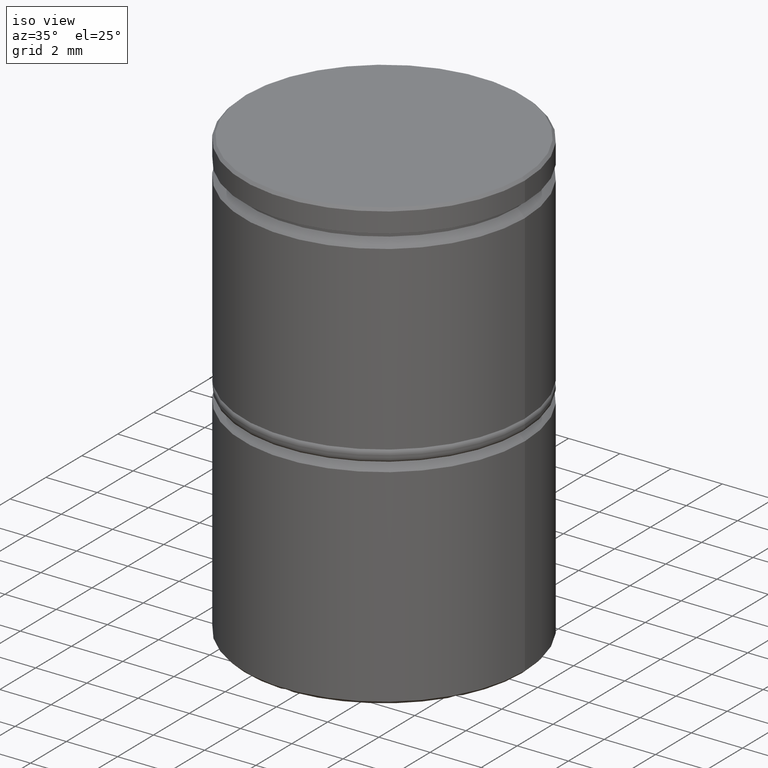
[diagram: clean part render]
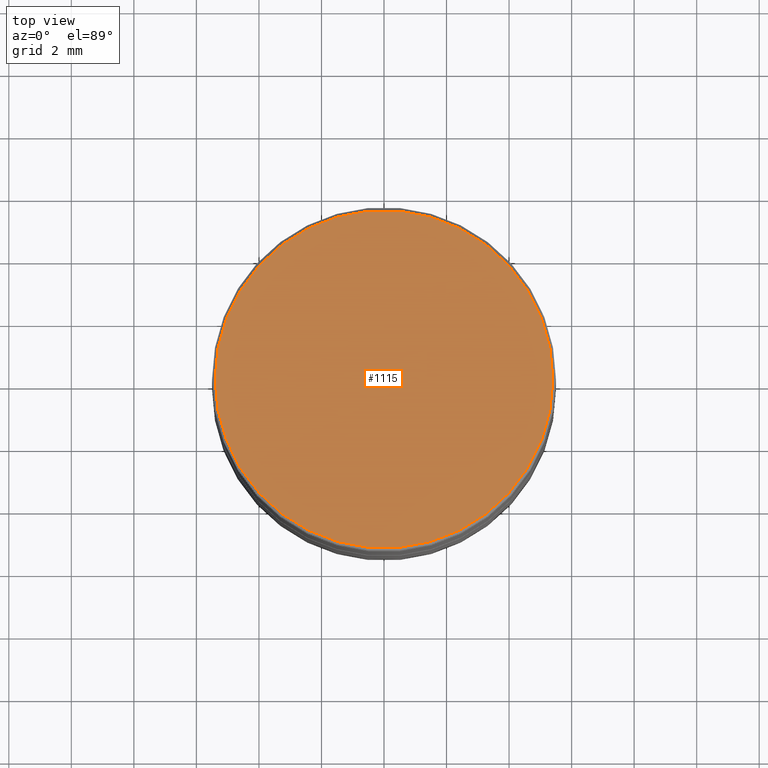
[diagram: tour spotlight — one face highlighted and labeled with its STEP entity id]
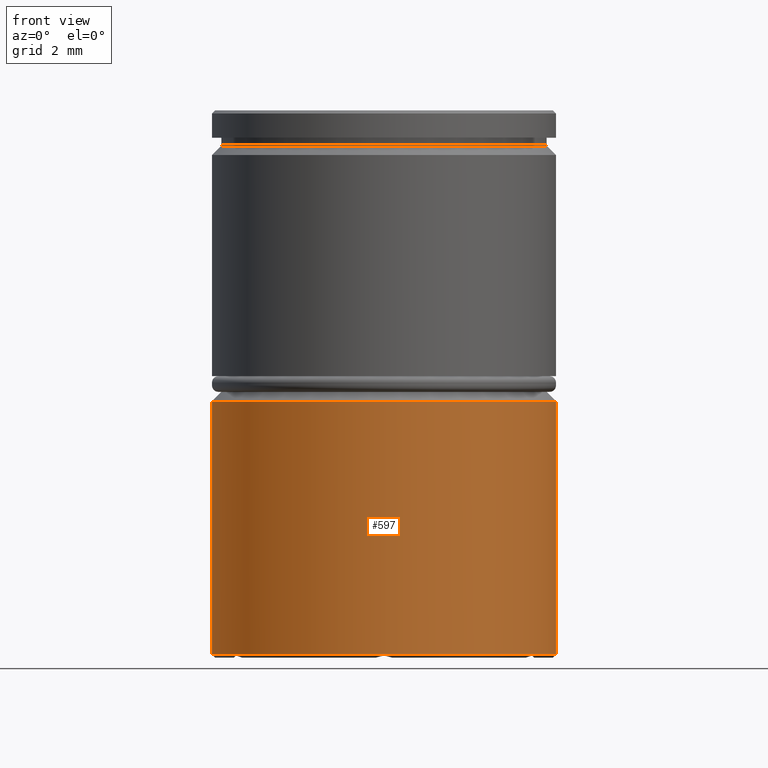
[diagram: tour spotlight — one face highlighted and labeled with its STEP entity id]
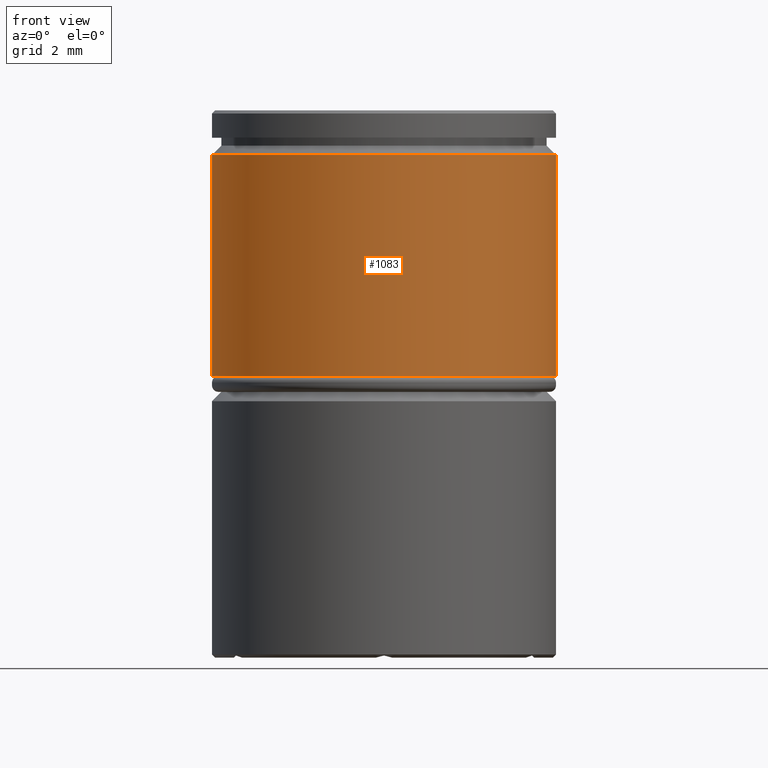
[diagram: tour spotlight — one face highlighted and labeled with its STEP entity id]
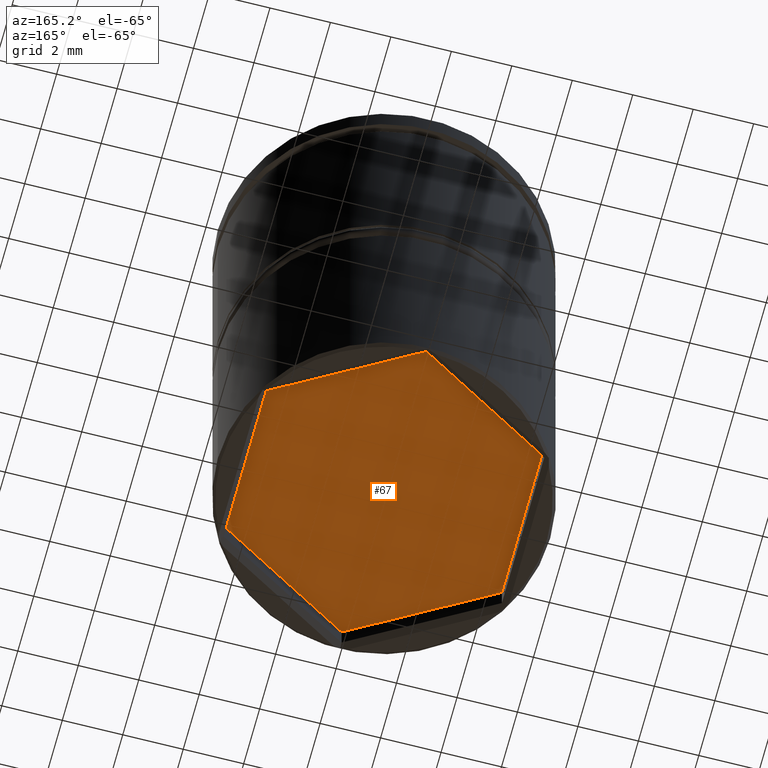
[diagram: tour spotlight — one face highlighted and labeled with its STEP entity id]
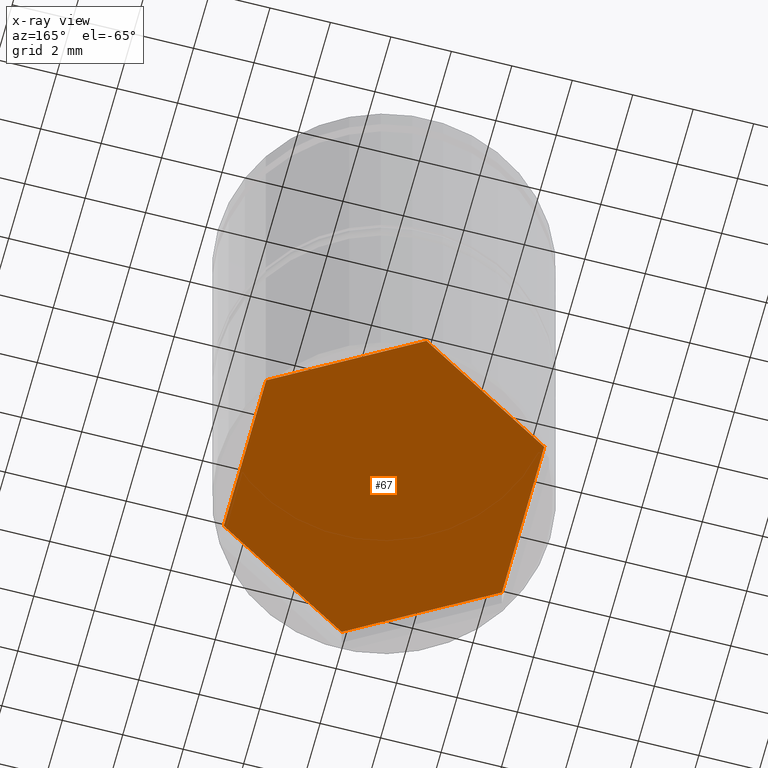
[diagram: x-ray of the same camera — body ghosted, this tour face saturated]
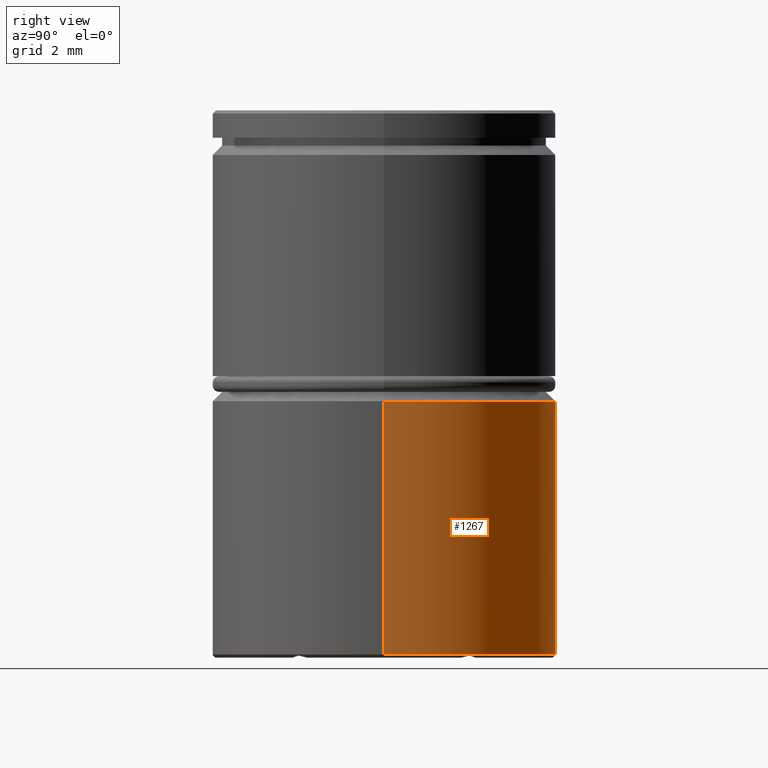
[diagram: tour spotlight — one face highlighted and labeled with its STEP entity id]
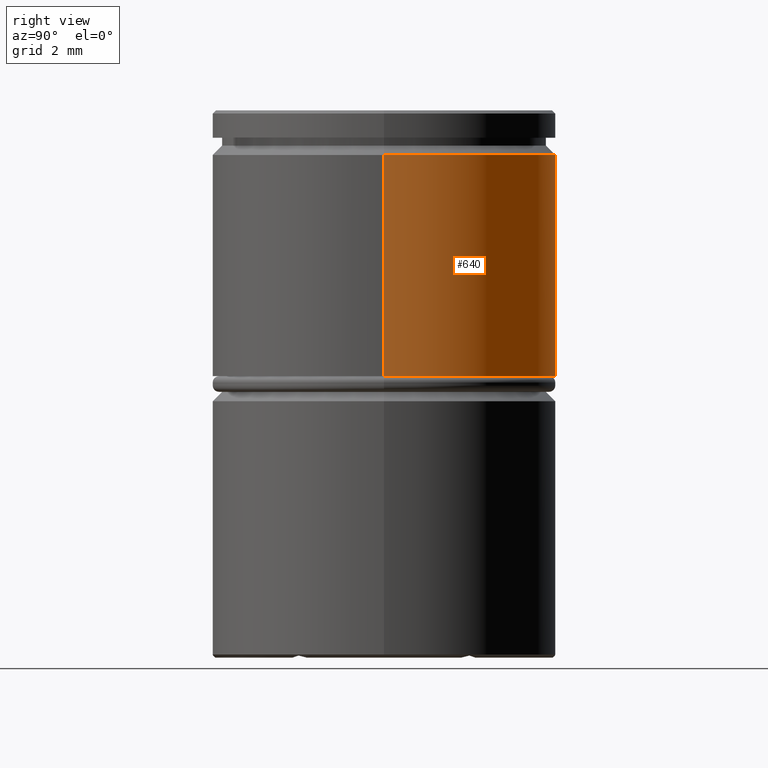
[diagram: tour spotlight — one face highlighted and labeled with its STEP entity id]
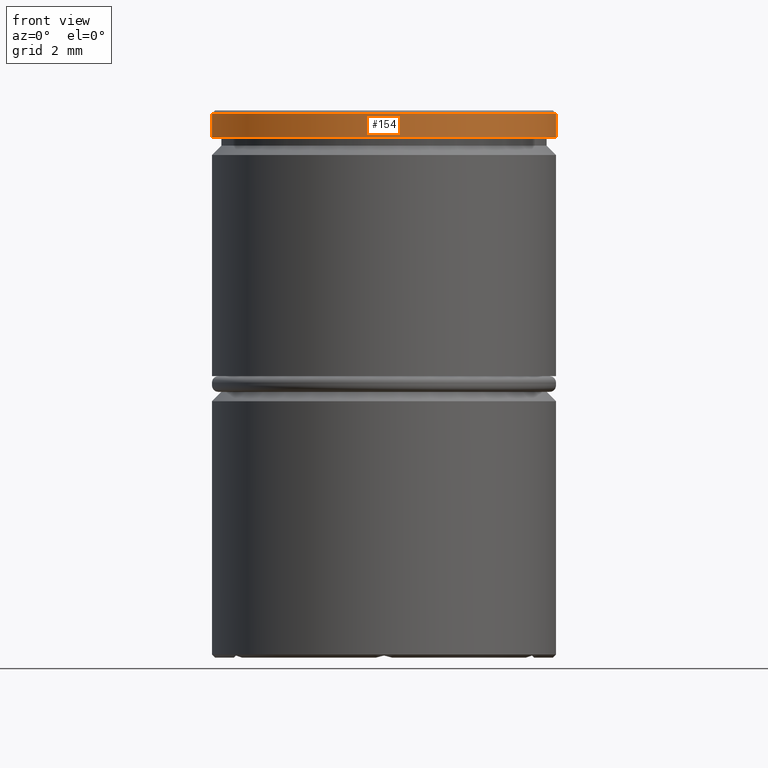
[diagram: tour spotlight — one face highlighted and labeled with its STEP entity id]
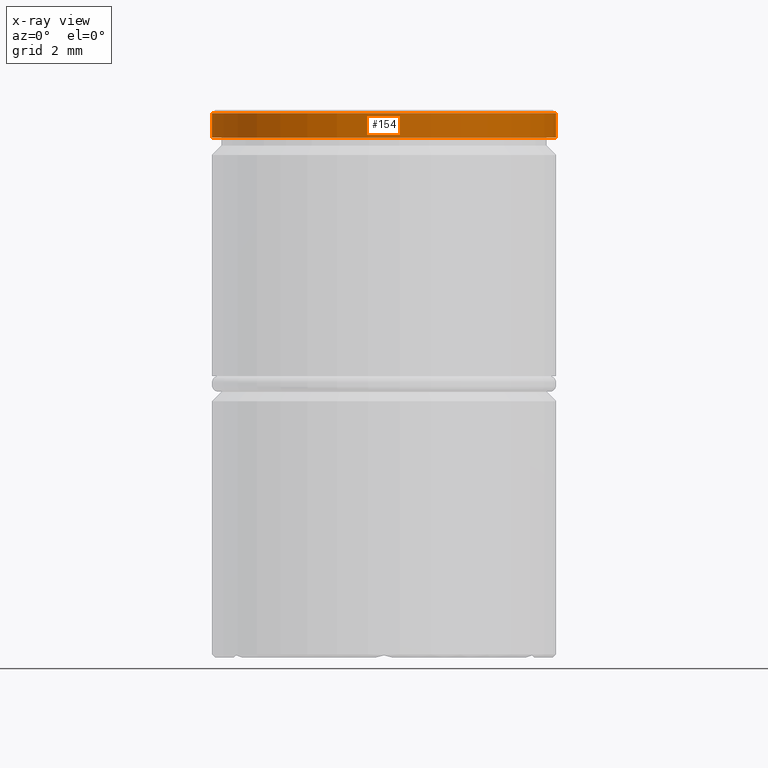
[diagram: x-ray of the same camera — body ghosted, this tour face saturated]
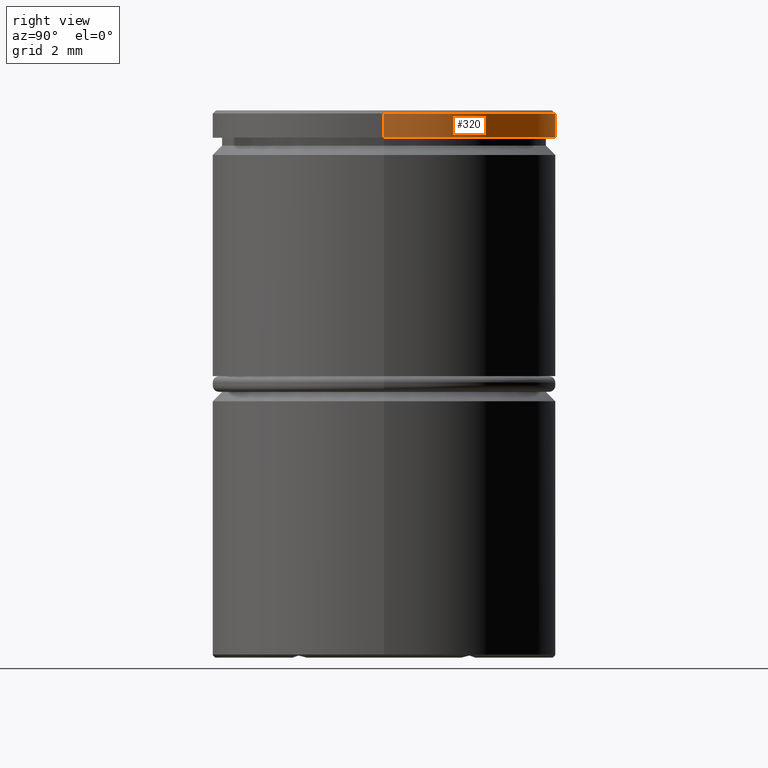
[diagram: tour spotlight — one face highlighted and labeled with its STEP entity id]
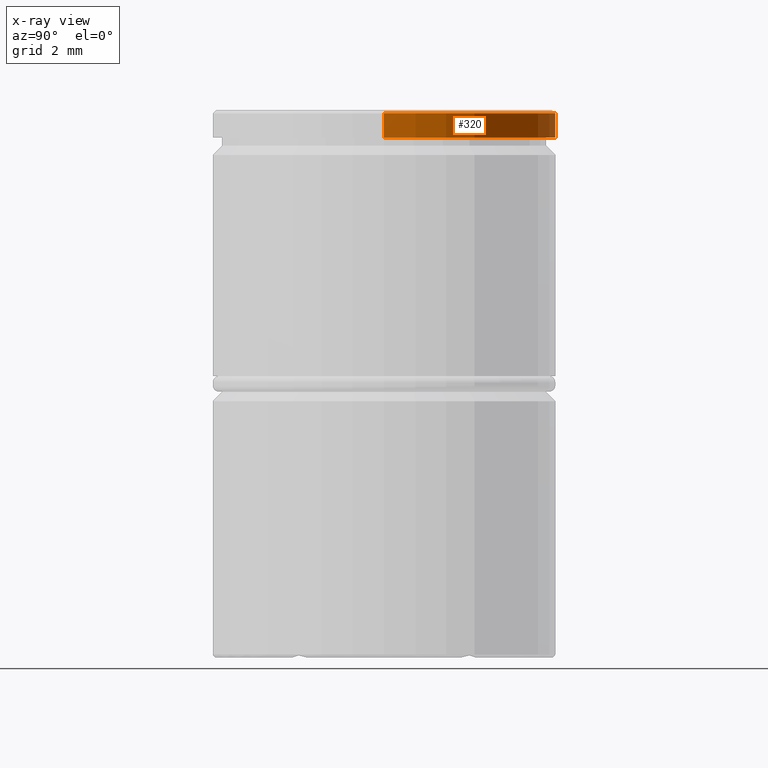
[diagram: x-ray of the same camera — body ghosted, this tour face saturated]
A machine part: a face-by-face anatomy tour. The part has 48 B-rep faces; the first image is the clean iso view, then the 8 largest visible faces are spotlighted one at a time (largest first), each with its STEP entity span.

Face 1 — top view, entity #1115. In plain terms, the highlighted planar face has unit normal (0, -0, 1).
Definition (entity closure, byte-faithful):
#26 = AXIS2_PLACEMENT_3D ( 'NONE', #747, #423, #643 ) ;
#95 = AXIS2_PLACEMENT_3D ( 'NONE', #1132, #595, #1238 ) ;
#110 = EDGE_CURVE ( 'NONE', #297, #657, #263, .T. ) ;
#263 = CIRCLE ( 'NONE', #1220, 5.400000000000005684 ) ;
#297 = VERTEX_POINT ( 'NONE', #761 ) ;
#322 = CARTESIAN_POINT ( 'NONE',  ( -5.400000000000005684, 0.000000000000000000, 0.000000000000000000 ) ) ;
#423 = DIRECTION ( 'NONE',  ( -0.000000000000000000, -0.000000000000000000, 1.000000000000000000 ) ) ;
#455 = CIRCLE ( 'NONE', #26, 5.400000000000005684 ) ;
#575 = ORIENTED_EDGE ( 'NONE', *, *, #110, .T. ) ;
#595 = DIRECTION ( 'NONE',  ( 0.000000000000000000, -0.000000000000000000, 1.000000000000000000 ) ) ;
#643 = DIRECTION ( 'NONE',  ( 1.000000000000000000, 0.000000000000000000, 0.000000000000000000 ) ) ;
#657 = VERTEX_POINT ( 'NONE', #322 ) ;
#721 = PLANE ( 'NONE',  #95 ) ;
#747 = CARTESIAN_POINT ( 'NONE',  ( 0.000000000000000000, 0.000000000000000000, 0.000000000000000000 ) ) ;
#761 = CARTESIAN_POINT ( 'NONE',  ( 5.400000000000005684, 6.674325055353078196E-16, 0.000000000000000000 ) ) ;
#820 = CARTESIAN_POINT ( 'NONE',  ( 0.000000000000000000, 0.000000000000000000, 0.000000000000000000 ) ) ;
#845 = FACE_OUTER_BOUND ( 'NONE', #1097, .T. ) ;
#919 = DIRECTION ( 'NONE',  ( -0.000000000000000000, -0.000000000000000000, 1.000000000000000000 ) ) ;
#920 = ORIENTED_EDGE ( 'NONE', *, *, #1329, .T. ) ;
#1097 = EDGE_LOOP ( 'NONE', ( #920, #575 ) ) ;
#1115 = ADVANCED_FACE ( 'NONE', ( #845 ), #721, .T. ) ;
#1132 = CARTESIAN_POINT ( 'NONE',  ( 0.000000000000000000, 0.000000000000000000, 0.000000000000000000 ) ) ;
#1220 = AXIS2_PLACEMENT_3D ( 'NONE', #820, #919, #1352 ) ;
#1238 = DIRECTION ( 'NONE',  ( 1.000000000000000000, 0.000000000000000000, 0.000000000000000000 ) ) ;
#1329 = EDGE_CURVE ( 'NONE', #657, #297, #455, .T. ) ;
#1352 = DIRECTION ( 'NONE',  ( 1.000000000000000000, 0.000000000000000000, 0.000000000000000000 ) ) ;

Face 2 — front view, entity #597. In plain terms, the highlighted cylindrical surface (partial cylindrical patch) has radius 5.5 mm, axis along (-0, -0, 1).
Definition (entity closure, byte-faithful):
#1 = ORIENTED_EDGE ( 'NONE', *, *, #850, .T. ) ;
#19 = VERTEX_POINT ( 'NONE', #505 ) ;
#66 = AXIS2_PLACEMENT_3D ( 'NONE', #393, #77, #70 ) ;
#70 = DIRECTION ( 'NONE',  ( 1.000000000000000000, 0.000000000000000000, 0.000000000000000000 ) ) ;
#77 = DIRECTION ( 'NONE',  ( -0.000000000000000000, -0.000000000000000000, 1.000000000000000000 ) ) ;
#84 = CYLINDRICAL_SURFACE ( 'NONE', #66, 5.500000000000000000 ) ;
#118 = VECTOR ( 'NONE', #503, 1000.000000000000000 ) ;
#145 = CARTESIAN_POINT ( 'NONE',  ( 0.000000000000000000, 0.000000000000000000, -17.40000000000000568 ) ) ;
#187 = ORIENTED_EDGE ( 'NONE', *, *, #775, .F. ) ;
#189 = CARTESIAN_POINT ( 'NONE',  ( 5.500000000000000000, 0.000000000000000000, 0.000000000000000000 ) ) ;
#243 = DIRECTION ( 'NONE',  ( 0.000000000000000000, 0.000000000000000000, -1.000000000000000000 ) ) ;
#334 = LINE ( 'NONE', #1302, #650 ) ;
#375 = EDGE_CURVE ( 'NONE', #923, #1283, #935, .T. ) ;
#393 = CARTESIAN_POINT ( 'NONE',  ( 0.000000000000000000, 0.000000000000000000, 0.000000000000000000 ) ) ;
#503 = DIRECTION ( 'NONE',  ( -0.000000000000000000, -0.000000000000000000, 1.000000000000000000 ) ) ;
#505 = CARTESIAN_POINT ( 'NONE',  ( -5.500000000000000000, 6.735557395310442023E-16, -9.299999999999998934 ) ) ;
#543 = DIRECTION ( 'NONE',  ( -0.000000000000000000, -0.000000000000000000, 1.000000000000000000 ) ) ;
#594 = LINE ( 'NONE', #189, #118 ) ;
#597 = ADVANCED_FACE ( 'NONE', ( #601 ), #84, .T. ) ;
#601 = FACE_OUTER_BOUND ( 'NONE', #1193, .T. ) ;
#629 = VERTEX_POINT ( 'NONE', #1234 ) ;
#650 = VECTOR ( 'NONE', #543, 1000.000000000000000 ) ;
#685 = ORIENTED_EDGE ( 'NONE', *, *, #375, .T. ) ;
#775 = EDGE_CURVE ( 'NONE', #923, #19, #334, .T. ) ;
#776 = DIRECTION ( 'NONE',  ( -0.000000000000000000, -0.000000000000000000, 1.000000000000000000 ) ) ;
#777 = CARTESIAN_POINT ( 'NONE',  ( 0.000000000000000000, 0.000000000000000000, -9.299999999999998934 ) ) ;
#782 = DIRECTION ( 'NONE',  ( -1.000000000000000000, 0.000000000000000000, 0.000000000000000000 ) ) ;
#850 = EDGE_CURVE ( 'NONE', #629, #19, #959, .T. ) ;
#923 = VERTEX_POINT ( 'NONE', #1322 ) ;
#935 = CIRCLE ( 'NONE', #1181, 5.500000000000000000 ) ;
#959 = CIRCLE ( 'NONE', #983, 5.500000000000000000 ) ;
#976 = ORIENTED_EDGE ( 'NONE', *, *, #1210, .T. ) ;
#983 = AXIS2_PLACEMENT_3D ( 'NONE', #777, #243, #988 ) ;
#988 = DIRECTION ( 'NONE',  ( 1.000000000000000000, 0.000000000000000000, 0.000000000000000000 ) ) ;
#1181 = AXIS2_PLACEMENT_3D ( 'NONE', #145, #776, #782 ) ;
#1193 = EDGE_LOOP ( 'NONE', ( #187, #685, #976, #1 ) ) ;
#1210 = EDGE_CURVE ( 'NONE', #1283, #629, #594, .T. ) ;
#1234 = CARTESIAN_POINT ( 'NONE',  ( 5.500000000000000000, 0.000000000000000000, -9.299999999999998934 ) ) ;
#1253 = CARTESIAN_POINT ( 'NONE',  ( 5.500000000000000000, 0.000000000000000000, -17.40000000000000568 ) ) ;
#1283 = VERTEX_POINT ( 'NONE', #1253 ) ;
#1302 = CARTESIAN_POINT ( 'NONE',  ( -5.500000000000000000, 6.735557395310442023E-16, 0.000000000000000000 ) ) ;
#1322 = CARTESIAN_POINT ( 'NONE',  ( -5.500000000000000000, 6.735557395310442023E-16, -17.40000000000000568 ) ) ;

Face 3 — front view, entity #1083. In plain terms, the highlighted cylindrical surface (partial cylindrical patch) has radius 5.5 mm, axis along (-0, -0, 1).
Definition (entity closure, byte-faithful):
#18 = CARTESIAN_POINT ( 'NONE',  ( -5.500000000000000000, 6.735557395310442023E-16, 0.000000000000000000 ) ) ;
#39 = VERTEX_POINT ( 'NONE', #57 ) ;
#57 = CARTESIAN_POINT ( 'NONE',  ( -5.500000000000000000, 6.735557395310442023E-16, -1.425000000000005151 ) ) ;
#71 = DIRECTION ( 'NONE',  ( 1.000000000000000000, 0.000000000000000000, 0.000000000000000000 ) ) ;
#98 = DIRECTION ( 'NONE',  ( -0.000000000000000000, -0.000000000000000000, 1.000000000000000000 ) ) ;
#137 = EDGE_CURVE ( 'NONE', #805, #719, #227, .T. ) ;
#168 = EDGE_LOOP ( 'NONE', ( #421, #565, #378, #480 ) ) ;
#227 = CIRCLE ( 'NONE', #540, 5.500000000000000000 ) ;
#230 = AXIS2_PLACEMENT_3D ( 'NONE', #862, #1195, #237 ) ;
#237 = DIRECTION ( 'NONE',  ( 1.000000000000000000, 0.000000000000000000, 0.000000000000000000 ) ) ;
#285 = CARTESIAN_POINT ( 'NONE',  ( 5.500000000000000000, 0.000000000000000000, -1.425000000000005151 ) ) ;
#378 = ORIENTED_EDGE ( 'NONE', *, *, #1357, .T. ) ;
#421 = ORIENTED_EDGE ( 'NONE', *, *, #704, .F. ) ;
#433 = AXIS2_PLACEMENT_3D ( 'NONE', #1024, #828, #71 ) ;
#444 = VERTEX_POINT ( 'NONE', #285 ) ;
#449 = CARTESIAN_POINT ( 'NONE',  ( 5.500000000000000000, 0.000000000000000000, -8.500000000000000000 ) ) ;
#480 = ORIENTED_EDGE ( 'NONE', *, *, #1194, .T. ) ;
#538 = CYLINDRICAL_SURFACE ( 'NONE', #230, 5.500000000000000000 ) ;
#540 = AXIS2_PLACEMENT_3D ( 'NONE', #931, #834, #1335 ) ;
#565 = ORIENTED_EDGE ( 'NONE', *, *, #137, .T. ) ;
#675 = VECTOR ( 'NONE', #98, 1000.000000000000000 ) ;
#704 = EDGE_CURVE ( 'NONE', #805, #39, #1169, .T. ) ;
#719 = VERTEX_POINT ( 'NONE', #449 ) ;
#768 = FACE_OUTER_BOUND ( 'NONE', #168, .T. ) ;
#787 = VECTOR ( 'NONE', #1176, 1000.000000000000000 ) ;
#805 = VERTEX_POINT ( 'NONE', #961 ) ;
#828 = DIRECTION ( 'NONE',  ( 0.000000000000000000, 0.000000000000000000, -1.000000000000000000 ) ) ;
#834 = DIRECTION ( 'NONE',  ( -0.000000000000000000, -0.000000000000000000, 1.000000000000000000 ) ) ;
#862 = CARTESIAN_POINT ( 'NONE',  ( 0.000000000000000000, 0.000000000000000000, 0.000000000000000000 ) ) ;
#931 = CARTESIAN_POINT ( 'NONE',  ( 0.000000000000000000, 0.000000000000000000, -8.500000000000000000 ) ) ;
#961 = CARTESIAN_POINT ( 'NONE',  ( -5.500000000000000000, 6.735557395310442023E-16, -8.500000000000000000 ) ) ;
#1003 = CIRCLE ( 'NONE', #433, 5.500000000000000000 ) ;
#1024 = CARTESIAN_POINT ( 'NONE',  ( 0.000000000000000000, 0.000000000000000000, -1.425000000000005151 ) ) ;
#1080 = CARTESIAN_POINT ( 'NONE',  ( 5.500000000000000000, 0.000000000000000000, 0.000000000000000000 ) ) ;
#1083 = ADVANCED_FACE ( 'NONE', ( #768 ), #538, .T. ) ;
#1169 = LINE ( 'NONE', #18, #787 ) ;
#1176 = DIRECTION ( 'NONE',  ( -0.000000000000000000, -0.000000000000000000, 1.000000000000000000 ) ) ;
#1194 = EDGE_CURVE ( 'NONE', #444, #39, #1003, .T. ) ;
#1195 = DIRECTION ( 'NONE',  ( -0.000000000000000000, -0.000000000000000000, 1.000000000000000000 ) ) ;
#1335 = DIRECTION ( 'NONE',  ( 1.000000000000000000, 0.000000000000000000, 0.000000000000000000 ) ) ;
#1357 = EDGE_CURVE ( 'NONE', #719, #444, #1376, .T. ) ;
#1376 = LINE ( 'NONE', #1080, #675 ) ;

Face 4 — auxiliary view, entity #67. An x-ray twin of the same camera follows (body ghosted, this face saturated) — the face is partly hidden behind the body. In plain terms, the highlighted planar face has unit normal (0, 0, -1).
Definition (entity closure, byte-faithful):
#8 = CARTESIAN_POINT ( 'NONE',  ( 0.000000000000000000, 5.311622476544559213, -16.50000000000000000 ) ) ;
#21 = AXIS2_PLACEMENT_3D ( 'NONE', #908, #903, #1241 ) ;
#50 = VERTEX_POINT ( 'NONE', #287 ) ;
#67 = ADVANCED_FACE ( 'NONE', ( #75 ), #715, .T. ) ;
#75 = FACE_OUTER_BOUND ( 'NONE', #1066, .T. ) ;
#90 = DIRECTION ( 'NONE',  ( 0.8660254037844387076, 0.4999999999999998890, 0.000000000000000000 ) ) ;
#134 = CARTESIAN_POINT ( 'NONE',  ( 0.000000000000000000, 5.311622476544559213, -16.50000000000000000 ) ) ;
#170 = CARTESIAN_POINT ( 'NONE',  ( -4.600000000000003197, -2.655811238272279606, -16.50000000000000000 ) ) ;
#258 = EDGE_CURVE ( 'NONE', #1172, #748, #1042, .T. ) ;
#287 = CARTESIAN_POINT ( 'NONE',  ( -4.600000000000003197, -2.655811238272279606, -16.50000000000000000 ) ) ;
#388 = EDGE_CURVE ( 'NONE', #649, #1305, #1091, .T. ) ;
#400 = LINE ( 'NONE', #170, #879 ) ;
#409 = CARTESIAN_POINT ( 'NONE',  ( -8.646952822150503169E-16, -5.311622476544560989, -16.50000000000000000 ) ) ;
#417 = LINE ( 'NONE', #742, #495 ) ;
#456 = CARTESIAN_POINT ( 'NONE',  ( 4.600000000000003197, 2.655811238272278718, -16.50000000000000000 ) ) ;
#462 = CARTESIAN_POINT ( 'NONE',  ( 4.600000000000003197, -2.655811238272280050, -16.50000000000000000 ) ) ;
#481 = EDGE_CURVE ( 'NONE', #614, #50, #417, .T. ) ;
#487 = CARTESIAN_POINT ( 'NONE',  ( 4.600000000000003197, 2.655811238272278718, -16.50000000000000000 ) ) ;
#495 = VECTOR ( 'NONE', #622, 1000.000000000000227 ) ;
#577 = DIRECTION ( 'NONE',  ( 0.000000000000000000, -1.000000000000000000, 0.000000000000000000 ) ) ;
#604 = VECTOR ( 'NONE', #577, 1000.000000000000000 ) ;
#614 = VERTEX_POINT ( 'NONE', #409 ) ;
#622 = DIRECTION ( 'NONE',  ( -0.8660254037844384856, 0.5000000000000002220, 0.000000000000000000 ) ) ;
#649 = VERTEX_POINT ( 'NONE', #487 ) ;
#715 = PLANE ( 'NONE',  #21 ) ;
#742 = CARTESIAN_POINT ( 'NONE',  ( -8.646952822150503169E-16, -5.311622476544560989, -16.50000000000000000 ) ) ;
#748 = VERTEX_POINT ( 'NONE', #8 ) ;
#759 = CARTESIAN_POINT ( 'NONE',  ( 4.600000000000003197, -2.655811238272280050, -16.50000000000000000 ) ) ;
#797 = ORIENTED_EDGE ( 'NONE', *, *, #481, .T. ) ;
#798 = EDGE_CURVE ( 'NONE', #748, #649, #1191, .T. ) ;
#808 = CARTESIAN_POINT ( 'NONE',  ( -4.600000000000003197, 2.655811238272279606, -16.50000000000000000 ) ) ;
#874 = EDGE_CURVE ( 'NONE', #1305, #614, #968, .T. ) ;
#879 = VECTOR ( 'NONE', #913, 1000.000000000000000 ) ;
#889 = ORIENTED_EDGE ( 'NONE', *, *, #258, .T. ) ;
#903 = DIRECTION ( 'NONE',  ( 0.000000000000000000, 0.000000000000000000, -1.000000000000000000 ) ) ;
#908 = CARTESIAN_POINT ( 'NONE',  ( 0.000000000000000000, 0.000000000000000000, -16.50000000000000000 ) ) ;
#913 = DIRECTION ( 'NONE',  ( 0.000000000000000000, 1.000000000000000000, 0.000000000000000000 ) ) ;
#937 = VECTOR ( 'NONE', #1063, 1000.000000000000114 ) ;
#968 = LINE ( 'NONE', #462, #1069 ) ;
#1042 = LINE ( 'NONE', #1266, #1046 ) ;
#1046 = VECTOR ( 'NONE', #90, 1000.000000000000114 ) ;
#1063 = DIRECTION ( 'NONE',  ( 0.8660254037844385966, -0.4999999999999999445, 0.000000000000000000 ) ) ;
#1066 = EDGE_LOOP ( 'NONE', ( #889, #1310, #1296, #1128, #797, #1179 ) ) ;
#1069 = VECTOR ( 'NONE', #1313, 1000.000000000000114 ) ;
#1091 = LINE ( 'NONE', #456, #604 ) ;
#1128 = ORIENTED_EDGE ( 'NONE', *, *, #874, .T. ) ;
#1172 = VERTEX_POINT ( 'NONE', #808 ) ;
#1179 = ORIENTED_EDGE ( 'NONE', *, *, #1183, .T. ) ;
#1183 = EDGE_CURVE ( 'NONE', #50, #1172, #400, .T. ) ;
#1191 = LINE ( 'NONE', #134, #937 ) ;
#1241 = DIRECTION ( 'NONE',  ( -1.000000000000000000, 0.000000000000000000, -0.000000000000000000 ) ) ;
#1266 = CARTESIAN_POINT ( 'NONE',  ( -4.600000000000003197, 2.655811238272279606, -16.50000000000000000 ) ) ;
#1296 = ORIENTED_EDGE ( 'NONE', *, *, #388, .T. ) ;
#1305 = VERTEX_POINT ( 'NONE', #759 ) ;
#1310 = ORIENTED_EDGE ( 'NONE', *, *, #798, .T. ) ;
#1313 = DIRECTION ( 'NONE',  ( -0.8660254037844385966, -0.4999999999999999445, 0.000000000000000000 ) ) ;

Face 5 — right view, entity #1267. In plain terms, the highlighted cylindrical surface (partial cylindrical patch) has radius 5.5 mm, axis along (-0, -0, 1).
Definition (entity closure, byte-faithful):
#3 = AXIS2_PLACEMENT_3D ( 'NONE', #635, #952, #1058 ) ;
#19 = VERTEX_POINT ( 'NONE', #505 ) ;
#118 = VECTOR ( 'NONE', #503, 1000.000000000000000 ) ;
#189 = CARTESIAN_POINT ( 'NONE',  ( 5.500000000000000000, 0.000000000000000000, 0.000000000000000000 ) ) ;
#191 = EDGE_CURVE ( 'NONE', #1283, #923, #1135, .T. ) ;
#222 = EDGE_LOOP ( 'NONE', ( #990, #257, #780, #774 ) ) ;
#257 = ORIENTED_EDGE ( 'NONE', *, *, #775, .T. ) ;
#299 = CARTESIAN_POINT ( 'NONE',  ( 0.000000000000000000, 0.000000000000000000, 0.000000000000000000 ) ) ;
#334 = LINE ( 'NONE', #1302, #650 ) ;
#364 = CIRCLE ( 'NONE', #831, 5.500000000000000000 ) ;
#503 = DIRECTION ( 'NONE',  ( -0.000000000000000000, -0.000000000000000000, 1.000000000000000000 ) ) ;
#505 = CARTESIAN_POINT ( 'NONE',  ( -5.500000000000000000, 6.735557395310442023E-16, -9.299999999999998934 ) ) ;
#543 = DIRECTION ( 'NONE',  ( -0.000000000000000000, -0.000000000000000000, 1.000000000000000000 ) ) ;
#594 = LINE ( 'NONE', #189, #118 ) ;
#629 = VERTEX_POINT ( 'NONE', #1234 ) ;
#635 = CARTESIAN_POINT ( 'NONE',  ( 0.000000000000000000, 0.000000000000000000, -17.40000000000000568 ) ) ;
#650 = VECTOR ( 'NONE', #543, 1000.000000000000000 ) ;
#676 = DIRECTION ( 'NONE',  ( 1.000000000000000000, 0.000000000000000000, 0.000000000000000000 ) ) ;
#690 = DIRECTION ( 'NONE',  ( 0.000000000000000000, 0.000000000000000000, -1.000000000000000000 ) ) ;
#701 = FACE_OUTER_BOUND ( 'NONE', #222, .T. ) ;
#726 = AXIS2_PLACEMENT_3D ( 'NONE', #299, #1244, #837 ) ;
#774 = ORIENTED_EDGE ( 'NONE', *, *, #1210, .F. ) ;
#775 = EDGE_CURVE ( 'NONE', #923, #19, #334, .T. ) ;
#780 = ORIENTED_EDGE ( 'NONE', *, *, #890, .T. ) ;
#817 = CYLINDRICAL_SURFACE ( 'NONE', #726, 5.500000000000000000 ) ;
#831 = AXIS2_PLACEMENT_3D ( 'NONE', #992, #690, #676 ) ;
#837 = DIRECTION ( 'NONE',  ( 1.000000000000000000, 0.000000000000000000, 0.000000000000000000 ) ) ;
#890 = EDGE_CURVE ( 'NONE', #19, #629, #364, .T. ) ;
#923 = VERTEX_POINT ( 'NONE', #1322 ) ;
#952 = DIRECTION ( 'NONE',  ( -0.000000000000000000, -0.000000000000000000, 1.000000000000000000 ) ) ;
#990 = ORIENTED_EDGE ( 'NONE', *, *, #191, .T. ) ;
#992 = CARTESIAN_POINT ( 'NONE',  ( 0.000000000000000000, 0.000000000000000000, -9.299999999999998934 ) ) ;
#1058 = DIRECTION ( 'NONE',  ( -1.000000000000000000, 0.000000000000000000, 0.000000000000000000 ) ) ;
#1135 = CIRCLE ( 'NONE', #3, 5.500000000000000000 ) ;
#1210 = EDGE_CURVE ( 'NONE', #1283, #629, #594, .T. ) ;
#1234 = CARTESIAN_POINT ( 'NONE',  ( 5.500000000000000000, 0.000000000000000000, -9.299999999999998934 ) ) ;
#1244 = DIRECTION ( 'NONE',  ( -0.000000000000000000, -0.000000000000000000, 1.000000000000000000 ) ) ;
#1253 = CARTESIAN_POINT ( 'NONE',  ( 5.500000000000000000, 0.000000000000000000, -17.40000000000000568 ) ) ;
#1267 = ADVANCED_FACE ( 'NONE', ( #701 ), #817, .T. ) ;
#1283 = VERTEX_POINT ( 'NONE', #1253 ) ;
#1302 = CARTESIAN_POINT ( 'NONE',  ( -5.500000000000000000, 6.735557395310442023E-16, 0.000000000000000000 ) ) ;
#1322 = CARTESIAN_POINT ( 'NONE',  ( -5.500000000000000000, 6.735557395310442023E-16, -17.40000000000000568 ) ) ;

Face 6 — right view, entity #640. In plain terms, the highlighted cylindrical surface (partial cylindrical patch) has radius 5.5 mm, axis along (-0, -0, 1).
Definition (entity closure, byte-faithful):
#18 = CARTESIAN_POINT ( 'NONE',  ( -5.500000000000000000, 6.735557395310442023E-16, 0.000000000000000000 ) ) ;
#39 = VERTEX_POINT ( 'NONE', #57 ) ;
#57 = CARTESIAN_POINT ( 'NONE',  ( -5.500000000000000000, 6.735557395310442023E-16, -1.425000000000005151 ) ) ;
#98 = DIRECTION ( 'NONE',  ( -0.000000000000000000, -0.000000000000000000, 1.000000000000000000 ) ) ;
#176 = CARTESIAN_POINT ( 'NONE',  ( 0.000000000000000000, 0.000000000000000000, 0.000000000000000000 ) ) ;
#207 = AXIS2_PLACEMENT_3D ( 'NONE', #176, #905, #822 ) ;
#211 = DIRECTION ( 'NONE',  ( 1.000000000000000000, 0.000000000000000000, 0.000000000000000000 ) ) ;
#219 = CARTESIAN_POINT ( 'NONE',  ( 0.000000000000000000, 0.000000000000000000, -8.500000000000000000 ) ) ;
#247 = AXIS2_PLACEMENT_3D ( 'NONE', #846, #1161, #211 ) ;
#285 = CARTESIAN_POINT ( 'NONE',  ( 5.500000000000000000, 0.000000000000000000, -1.425000000000005151 ) ) ;
#314 = CIRCLE ( 'NONE', #406, 5.500000000000000000 ) ;
#352 = DIRECTION ( 'NONE',  ( -0.000000000000000000, -0.000000000000000000, 1.000000000000000000 ) ) ;
#406 = AXIS2_PLACEMENT_3D ( 'NONE', #219, #352, #757 ) ;
#415 = EDGE_LOOP ( 'NONE', ( #1205, #486, #949, #521 ) ) ;
#444 = VERTEX_POINT ( 'NONE', #285 ) ;
#449 = CARTESIAN_POINT ( 'NONE',  ( 5.500000000000000000, 0.000000000000000000, -8.500000000000000000 ) ) ;
#486 = ORIENTED_EDGE ( 'NONE', *, *, #704, .T. ) ;
#509 = EDGE_CURVE ( 'NONE', #39, #444, #853, .T. ) ;
#521 = ORIENTED_EDGE ( 'NONE', *, *, #1357, .F. ) ;
#640 = ADVANCED_FACE ( 'NONE', ( #836 ), #710, .T. ) ;
#675 = VECTOR ( 'NONE', #98, 1000.000000000000000 ) ;
#704 = EDGE_CURVE ( 'NONE', #805, #39, #1169, .T. ) ;
#710 = CYLINDRICAL_SURFACE ( 'NONE', #207, 5.500000000000000000 ) ;
#719 = VERTEX_POINT ( 'NONE', #449 ) ;
#757 = DIRECTION ( 'NONE',  ( 1.000000000000000000, 0.000000000000000000, 0.000000000000000000 ) ) ;
#787 = VECTOR ( 'NONE', #1176, 1000.000000000000000 ) ;
#805 = VERTEX_POINT ( 'NONE', #961 ) ;
#822 = DIRECTION ( 'NONE',  ( 1.000000000000000000, 0.000000000000000000, 0.000000000000000000 ) ) ;
#836 = FACE_OUTER_BOUND ( 'NONE', #415, .T. ) ;
#840 = EDGE_CURVE ( 'NONE', #719, #805, #314, .T. ) ;
#846 = CARTESIAN_POINT ( 'NONE',  ( 0.000000000000000000, 0.000000000000000000, -1.425000000000005151 ) ) ;
#853 = CIRCLE ( 'NONE', #247, 5.500000000000000000 ) ;
#905 = DIRECTION ( 'NONE',  ( -0.000000000000000000, -0.000000000000000000, 1.000000000000000000 ) ) ;
#949 = ORIENTED_EDGE ( 'NONE', *, *, #509, .T. ) ;
#961 = CARTESIAN_POINT ( 'NONE',  ( -5.500000000000000000, 6.735557395310442023E-16, -8.500000000000000000 ) ) ;
#1080 = CARTESIAN_POINT ( 'NONE',  ( 5.500000000000000000, 0.000000000000000000, 0.000000000000000000 ) ) ;
#1161 = DIRECTION ( 'NONE',  ( 0.000000000000000000, 0.000000000000000000, -1.000000000000000000 ) ) ;
#1169 = LINE ( 'NONE', #18, #787 ) ;
#1176 = DIRECTION ( 'NONE',  ( -0.000000000000000000, -0.000000000000000000, 1.000000000000000000 ) ) ;
#1205 = ORIENTED_EDGE ( 'NONE', *, *, #840, .T. ) ;
#1357 = EDGE_CURVE ( 'NONE', #719, #444, #1376, .T. ) ;
#1376 = LINE ( 'NONE', #1080, #675 ) ;

Face 7 — front view, entity #154. An x-ray twin of the same camera follows (body ghosted, this face saturated) — the face is partly hidden behind the body. In plain terms, the highlighted cylindrical surface (partial cylindrical patch) has radius 5.5 mm, axis along (-0, -0, 1).
Definition (entity closure, byte-faithful):
#53 = EDGE_CURVE ( 'NONE', #244, #764, #1363, .T. ) ;
#83 = VERTEX_POINT ( 'NONE', #405 ) ;
#121 = LINE ( 'NONE', #627, #806 ) ;
#154 = ADVANCED_FACE ( 'NONE', ( #1341 ), #385, .T. ) ;
#244 = VERTEX_POINT ( 'NONE', #841 ) ;
#268 = CIRCLE ( 'NONE', #1163, 5.500000000000000000 ) ;
#309 = EDGE_CURVE ( 'NONE', #83, #1170, #121, .T. ) ;
#359 = AXIS2_PLACEMENT_3D ( 'NONE', #442, #419, #1281 ) ;
#385 = CYLINDRICAL_SURFACE ( 'NONE', #359, 5.500000000000000000 ) ;
#405 = CARTESIAN_POINT ( 'NONE',  ( -5.500000000000000000, 6.735557395310442023E-16, -0.8749999999999998890 ) ) ;
#419 = DIRECTION ( 'NONE',  ( -0.000000000000000000, -0.000000000000000000, 1.000000000000000000 ) ) ;
#442 = CARTESIAN_POINT ( 'NONE',  ( 0.000000000000000000, 0.000000000000000000, 0.000000000000000000 ) ) ;
#490 = CARTESIAN_POINT ( 'NONE',  ( 5.500000000000000000, 0.000000000000000000, 0.000000000000000000 ) ) ;
#522 = CARTESIAN_POINT ( 'NONE',  ( -5.500000000000000000, 6.735557395310442023E-16, -0.09999999999999592548 ) ) ;
#536 = DIRECTION ( 'NONE',  ( -0.000000000000000000, -0.000000000000000000, 1.000000000000000000 ) ) ;
#548 = CARTESIAN_POINT ( 'NONE',  ( 0.000000000000000000, 0.000000000000000000, -0.8749999999999998890 ) ) ;
#621 = DIRECTION ( 'NONE',  ( 0.000000000000000000, 0.000000000000000000, -1.000000000000000000 ) ) ;
#627 = CARTESIAN_POINT ( 'NONE',  ( -5.500000000000000000, 6.735557395310442023E-16, 0.000000000000000000 ) ) ;
#636 = EDGE_LOOP ( 'NONE', ( #900, #1199, #741, #1101 ) ) ;
#729 = CARTESIAN_POINT ( 'NONE',  ( 0.000000000000000000, 0.000000000000000000, -0.09999999999999592548 ) ) ;
#741 = ORIENTED_EDGE ( 'NONE', *, *, #53, .T. ) ;
#752 = CARTESIAN_POINT ( 'NONE',  ( 5.500000000000000000, 0.000000000000000000, -0.09999999999999592548 ) ) ;
#764 = VERTEX_POINT ( 'NONE', #752 ) ;
#806 = VECTOR ( 'NONE', #868, 1000.000000000000000 ) ;
#810 = AXIS2_PLACEMENT_3D ( 'NONE', #548, #536, #843 ) ;
#825 = DIRECTION ( 'NONE',  ( -0.000000000000000000, -0.000000000000000000, 1.000000000000000000 ) ) ;
#841 = CARTESIAN_POINT ( 'NONE',  ( 5.500000000000000000, 0.000000000000000000, -0.8749999999999998890 ) ) ;
#843 = DIRECTION ( 'NONE',  ( 1.000000000000000000, 0.000000000000000000, 0.000000000000000000 ) ) ;
#868 = DIRECTION ( 'NONE',  ( -0.000000000000000000, -0.000000000000000000, 1.000000000000000000 ) ) ;
#900 = ORIENTED_EDGE ( 'NONE', *, *, #309, .F. ) ;
#910 = VECTOR ( 'NONE', #825, 1000.000000000000000 ) ;
#1044 = DIRECTION ( 'NONE',  ( 1.000000000000000000, 0.000000000000000000, 0.000000000000000000 ) ) ;
#1101 = ORIENTED_EDGE ( 'NONE', *, *, #1284, .T. ) ;
#1163 = AXIS2_PLACEMENT_3D ( 'NONE', #729, #621, #1044 ) ;
#1170 = VERTEX_POINT ( 'NONE', #522 ) ;
#1199 = ORIENTED_EDGE ( 'NONE', *, *, #1355, .T. ) ;
#1280 = CIRCLE ( 'NONE', #810, 5.500000000000000000 ) ;
#1281 = DIRECTION ( 'NONE',  ( 1.000000000000000000, 0.000000000000000000, 0.000000000000000000 ) ) ;
#1284 = EDGE_CURVE ( 'NONE', #764, #1170, #268, .T. ) ;
#1341 = FACE_OUTER_BOUND ( 'NONE', #636, .T. ) ;
#1355 = EDGE_CURVE ( 'NONE', #83, #244, #1280, .T. ) ;
#1363 = LINE ( 'NONE', #490, #910 ) ;

Face 8 — right view, entity #320. An x-ray twin of the same camera follows (body ghosted, this face saturated) — the face is partly hidden behind the body. In plain terms, the highlighted cylindrical surface (partial cylindrical patch) has radius 5.5 mm, axis along (-0, -0, 1).
Definition (entity closure, byte-faithful):
#34 = ORIENTED_EDGE ( 'NONE', *, *, #634, .T. ) ;
#41 = AXIS2_PLACEMENT_3D ( 'NONE', #1371, #195, #616 ) ;
#53 = EDGE_CURVE ( 'NONE', #244, #764, #1363, .T. ) ;
#83 = VERTEX_POINT ( 'NONE', #405 ) ;
#96 = CYLINDRICAL_SURFACE ( 'NONE', #670, 5.500000000000000000 ) ;
#121 = LINE ( 'NONE', #627, #806 ) ;
#186 = AXIS2_PLACEMENT_3D ( 'NONE', #1262, #921, #272 ) ;
#195 = DIRECTION ( 'NONE',  ( 0.000000000000000000, 0.000000000000000000, -1.000000000000000000 ) ) ;
#235 = ORIENTED_EDGE ( 'NONE', *, *, #309, .T. ) ;
#244 = VERTEX_POINT ( 'NONE', #841 ) ;
#272 = DIRECTION ( 'NONE',  ( 1.000000000000000000, 0.000000000000000000, 0.000000000000000000 ) ) ;
#309 = EDGE_CURVE ( 'NONE', #83, #1170, #121, .T. ) ;
#320 = ADVANCED_FACE ( 'NONE', ( #1051 ), #96, .T. ) ;
#392 = EDGE_LOOP ( 'NONE', ( #34, #235, #733, #932 ) ) ;
#405 = CARTESIAN_POINT ( 'NONE',  ( -5.500000000000000000, 6.735557395310442023E-16, -0.8749999999999998890 ) ) ;
#490 = CARTESIAN_POINT ( 'NONE',  ( 5.500000000000000000, 0.000000000000000000, 0.000000000000000000 ) ) ;
#522 = CARTESIAN_POINT ( 'NONE',  ( -5.500000000000000000, 6.735557395310442023E-16, -0.09999999999999592548 ) ) ;
#534 = EDGE_CURVE ( 'NONE', #1170, #764, #1319, .T. ) ;
#616 = DIRECTION ( 'NONE',  ( 1.000000000000000000, 0.000000000000000000, 0.000000000000000000 ) ) ;
#627 = CARTESIAN_POINT ( 'NONE',  ( -5.500000000000000000, 6.735557395310442023E-16, 0.000000000000000000 ) ) ;
#634 = EDGE_CURVE ( 'NONE', #244, #83, #722, .T. ) ;
#670 = AXIS2_PLACEMENT_3D ( 'NONE', #1379, #848, #1184 ) ;
#722 = CIRCLE ( 'NONE', #186, 5.500000000000000000 ) ;
#733 = ORIENTED_EDGE ( 'NONE', *, *, #534, .T. ) ;
#752 = CARTESIAN_POINT ( 'NONE',  ( 5.500000000000000000, 0.000000000000000000, -0.09999999999999592548 ) ) ;
#764 = VERTEX_POINT ( 'NONE', #752 ) ;
#806 = VECTOR ( 'NONE', #868, 1000.000000000000000 ) ;
#825 = DIRECTION ( 'NONE',  ( -0.000000000000000000, -0.000000000000000000, 1.000000000000000000 ) ) ;
#841 = CARTESIAN_POINT ( 'NONE',  ( 5.500000000000000000, 0.000000000000000000, -0.8749999999999998890 ) ) ;
#848 = DIRECTION ( 'NONE',  ( -0.000000000000000000, -0.000000000000000000, 1.000000000000000000 ) ) ;
#868 = DIRECTION ( 'NONE',  ( -0.000000000000000000, -0.000000000000000000, 1.000000000000000000 ) ) ;
#910 = VECTOR ( 'NONE', #825, 1000.000000000000000 ) ;
#921 = DIRECTION ( 'NONE',  ( -0.000000000000000000, -0.000000000000000000, 1.000000000000000000 ) ) ;
#932 = ORIENTED_EDGE ( 'NONE', *, *, #53, .F. ) ;
#1051 = FACE_OUTER_BOUND ( 'NONE', #392, .T. ) ;
#1170 = VERTEX_POINT ( 'NONE', #522 ) ;
#1184 = DIRECTION ( 'NONE',  ( 1.000000000000000000, 0.000000000000000000, 0.000000000000000000 ) ) ;
#1262 = CARTESIAN_POINT ( 'NONE',  ( 0.000000000000000000, 0.000000000000000000, -0.8749999999999998890 ) ) ;
#1319 = CIRCLE ( 'NONE', #41, 5.500000000000000000 ) ;
#1363 = LINE ( 'NONE', #490, #910 ) ;
#1371 = CARTESIAN_POINT ( 'NONE',  ( 0.000000000000000000, 0.000000000000000000, -0.09999999999999592548 ) ) ;
#1379 = CARTESIAN_POINT ( 'NONE',  ( 0.000000000000000000, 0.000000000000000000, 0.000000000000000000 ) ) ;